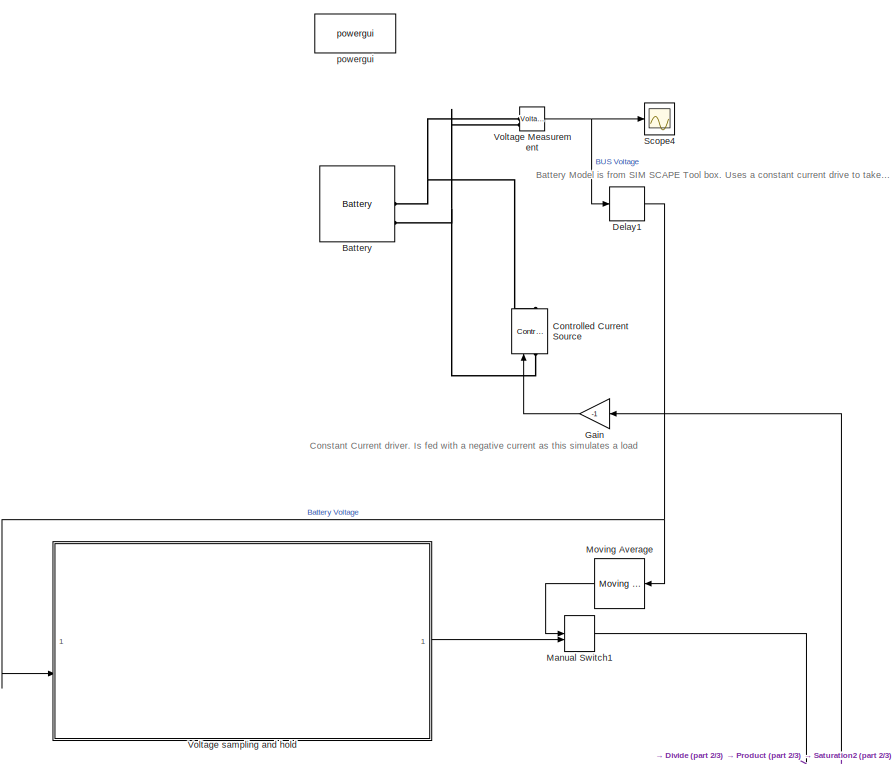
[diagram: root canvas - part 1/3, top center region]
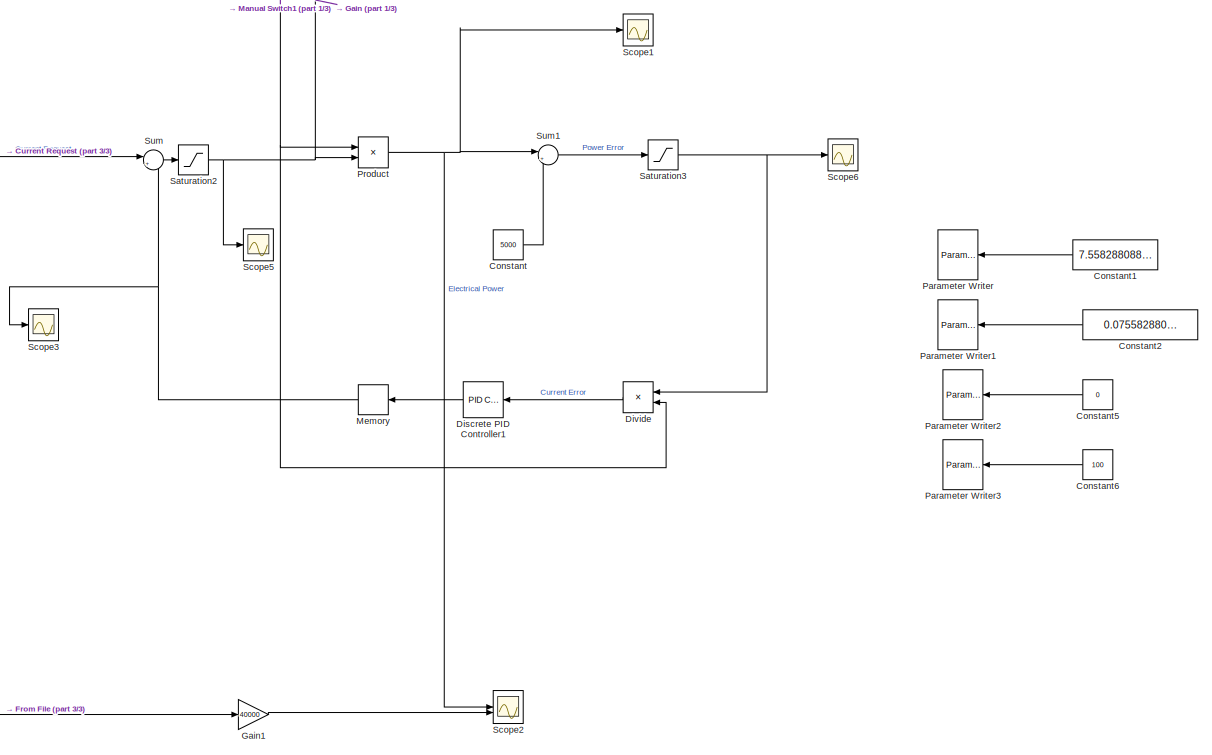
[diagram: root canvas - part 2/3, bottom right region]
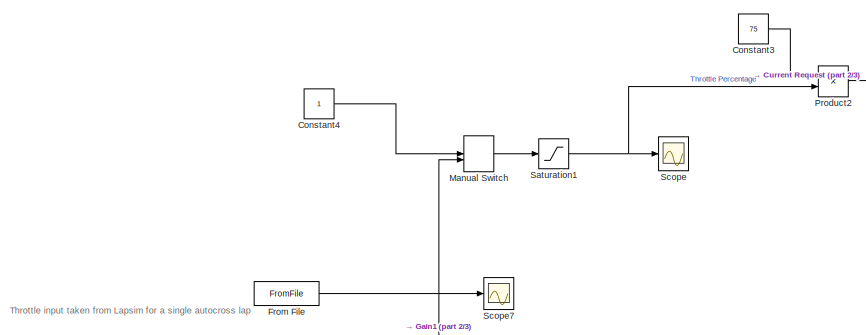
[diagram: root canvas - part 3/3, bottom left region]
MODEL slx_7d1962d27ec3
KIND model
CONFIG AbsTol = auto
CONFIG EnableMultiTasking = off
CONFIG FixedStep = auto
CONFIG MaxStep = auto
CONFIG MinStep = auto
CONFIG RelTol = 1e-3
CONFIG SampleTimeConstraint = Unconstrained
CONFIG SolverName = VariableStepAuto
CONFIG StartTime = 0.0
CONFIG StopTime = 10
BLOCK [Reference] Battery  REF=spsBatteryLib/Battery
  LibrarySourceBlock = sps_lib/Sources/Battery
  SourceBlock = spsBatteryLib/Battery
  SourceType = Battery
BLOCK [Constant] Constant
  Value = 5000
BLOCK [Constant] Constant1
  Value = 7.55828808876462e-05
BLOCK [Constant] Constant2
  Value = 0.0755828808876462
BLOCK [Constant] Constant3
  Value = 75
BLOCK [Constant] Constant4
BLOCK [Constant] Constant5
  Value = 0
BLOCK [Constant] Constant6
  Value = 100
BLOCK [Reference] Controlled Current Source  REF=spsControlledCurrentSourceLib/Controlled Current Source
  LibrarySourceBlock = sps_lib/Sources/Controlled Current Source
  SourceBlock = spsControlledCurrentSourceLib/Controlled Current Source
  SourceType = Controlled Current Source
BLOCK [Delay] Delay1
  DelayLength = 1
  InitialCondition = 600
  InputPortMap = u0
BLOCK [Reference] Discrete PID Controller1  REF=slpidlib/PID Controller
  LibrarySourceBlock = simulink/Discrete/Discrete PID Controller
  SourceBlock = slpidlib/PID Controller
  SourceType = PID 1dof
BLOCK [Product] Divide
  Inputs = */
BLOCK [FromFile] From File
  FileName = data.mat
  SampleTime = 0
BLOCK [Gain] Gain
  Gain = -1
BLOCK [Gain] Gain1
  Gain = 40000
BLOCK [ManualSwitch] Manual Switch
  CurrentSetting = 0
BLOCK [ManualSwitch] Manual Switch1
BLOCK [Memory] Memory
  InitialCondition = 14
BLOCK [Reference] Moving Average  REF=dspstat3/Moving
Average
  SourceBlock = dspstat3/Moving\nAverage
  SourceType = dsp.simulink.MovingAverage
BLOCK [ParameterWriter] Parameter Writer
  ParameterInternalName = P
  ParameterName = P
  ParameterOwnerBlock = ../Discrete PID Controller1
BLOCK [ParameterWriter] Parameter Writer1
  ParameterInternalName = I
  ParameterName = I
  ParameterOwnerBlock = ../Discrete PID Controller1
BLOCK [ParameterWriter] Parameter Writer2
  ParameterInternalName = D
  ParameterName = D
  ParameterOwnerBlock = ../Discrete PID Controller1
BLOCK [ParameterWriter] Parameter Writer3
  ParameterInternalName = N
  ParameterName = N
  ParameterOwnerBlock = ../Discrete PID Controller1
BLOCK [Product] Product
BLOCK [Product] Product2
BLOCK [Saturate] Saturation1
  LowerLimit = 0
  UpperLimit = inf
BLOCK [Saturate] Saturation2
  LowerLimit = 0
  UpperLimit = inf
BLOCK [Saturate] Saturation3
  LowerLimit = 0
  UpperLimit = inf
BLOCK [Scope] Scope
  Floating = off
  NumInputPorts = 1
  ScopeSpecificationString = Simulink.scopes.TimeScopeBlockCfg('CurrentConfiguration', extmgr.ConfigurationSet(extmgr.Configuration('Core','General UI',true),extmgr.Configuration('Core','Source UI',true),extmgr.Configuration('Sources','WiredSimulink',true),extmgr.Configuration('Visuals','Time Domain',true,'SerializedDisplays',{struct('MinYLimReal','-0.125','MaxYLimReal','1.125','YLabelReal','','MinYLimMag','0.00000','MaxYLimM...<+1484ch>
BLOCK [Scope] Scope1
  Floating = off
  NumInputPorts = 1
  ScopeSpecificationString = Simulink.scopes.TimeScopeBlockCfg('CurrentConfiguration', extmgr.ConfigurationSet(extmgr.Configuration('Core','General UI',true),extmgr.Configuration('Core','Source UI',true),extmgr.Configuration('Sources','WiredSimulink',true,'DataLoggingVariableName','ScopeData1'),extmgr.Configuration('Visuals','Time Domain',true,'SerializedDisplays',{struct('MinYLimReal','-1677.78804','MaxYLimReal','15100.09232...<+1534ch>
BLOCK [Scope] Scope2
  Floating = off
  NumInputPorts = 2
  ScopeSpecificationString = Simulink.scopes.TimeScopeBlockCfg('CurrentConfiguration', extmgr.ConfigurationSet(extmgr.Configuration('Core','General UI',true),extmgr.Configuration('Core','Source UI',true),extmgr.Configuration('Sources','WiredSimulink',true,'DataLoggingVariableName','ScopeData1'),extmgr.Configuration('Visuals','Time Domain',true,'SerializedDisplays',{struct('MinYLimReal','31236.53624','MaxYLimReal','43280.47434...<+1546ch>
BLOCK [Scope] Scope3
  Floating = off
  NumInputPorts = 1
  ScopeSpecificationString = Simulink.scopes.TimeScopeBlockCfg('CurrentConfiguration', extmgr.ConfigurationSet(extmgr.Configuration('Core','General UI',true),extmgr.Configuration('Core','Source UI',true),extmgr.Configuration('Sources','WiredSimulink',true,'DataLoggingVariableName','ScopeData2'),extmgr.Configuration('Visuals','Time Domain',true,'SerializedDisplays',{struct('MinYLimReal','7.42445','MaxYLimReal','73.17992','YLab...<+1481ch>
BLOCK [Scope] Scope4
  Floating = off
  NumInputPorts = 1
  ScopeSpecificationString = Simulink.scopes.TimeScopeBlockCfg('CurrentConfiguration', extmgr.ConfigurationSet(extmgr.Configuration('Core','General UI',true),extmgr.Configuration('Core','Source UI',true),extmgr.Configuration('Sources','WiredSimulink',true,'DataLoggingVariableName','ScopeData1'),extmgr.Configuration('Visuals','Time Domain',true,'SerializedDisplays',{struct('MinYLimReal','592.93745','MaxYLimReal','595.49837','Y...<+1506ch>
BLOCK [Scope] Scope5
  Floating = off
  NumInputPorts = 1
  ScopeSpecificationString = Simulink.scopes.TimeScopeBlockCfg('CurrentConfiguration', extmgr.ConfigurationSet(extmgr.Configuration('Core','General UI',true),extmgr.Configuration('Core','Source UI',true),extmgr.Configuration('Sources','WiredSimulink',true,'DataLoggingVariableName','ScopeData3'),extmgr.Configuration('Visuals','Time Domain',true,'SerializedDisplays',{struct('MinYLimReal','-9.375','MaxYLimReal','84.375','YLabelR...<+1495ch>
BLOCK [Scope] Scope6
  Floating = off
  NumInputPorts = 1
  ScopeSpecificationString = Simulink.scopes.TimeScopeBlockCfg('CurrentConfiguration', extmgr.ConfigurationSet(extmgr.Configuration('Core','General UI',true),extmgr.Configuration('Core','Source UI',true),extmgr.Configuration('Sources','WiredSimulink',true,'DataLoggingVariableName','ScopeData1'),extmgr.Configuration('Visuals','Time Domain',true,'SerializedDisplays',{struct('MinYLimReal','-1050.64966','MaxYLimReal','9455.84698'...<+1525ch>
BLOCK [Scope] Scope7
  Floating = off
  NumInputPorts = 1
  ScopeSpecificationString = Simulink.scopes.TimeScopeBlockCfg('CurrentConfiguration', extmgr.ConfigurationSet(extmgr.Configuration('Core','General UI',true),extmgr.Configuration('Core','Source UI',true),extmgr.Configuration('Sources','WiredSimulink',true,'DataLoggingVariableName','ScopeData1'),extmgr.Configuration('Visuals','Time Domain',true,'SerializedDisplays',{struct('MinYLimReal','-0.125','MaxYLimReal','1.125','YLabelRe...<+1445ch>
BLOCK [Sum] Sum
  Inputs = |+-
BLOCK [Sum] Sum1
  Inputs = |+-
BLOCK [Reference] Voltage Measurement  REF=spsVoltageMeasurementLib/Voltage Measurement
  LibrarySourceBlock = sps_lib/Sensors and Measurements/Voltage Measurement
  SourceBlock = spsVoltageMeasurementLib/Voltage Measurement
  SourceType = Voltage Measurement
  UserDataPersistent = on
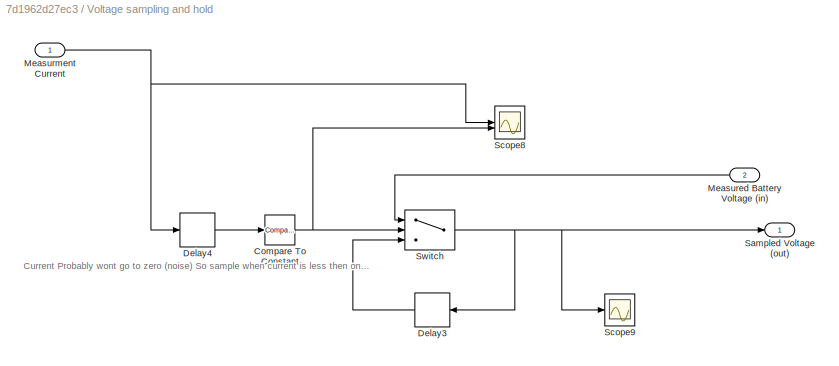
BLOCK [SubSystem] Voltage sampling  and hold
BLOCK [Reference] Voltage sampling  and hold/Compare To Constant  REF=simulink/Logic and Bit
Operations/Compare
To Constant
  SourceBlock = simulink/Logic and Bit\nOperations/Compare\nTo Constant
  SourceType = Compare To Constant
BLOCK [Delay] Voltage sampling  and hold/Delay3
  DelayLength = 1
  InitialCondition = 500
  InputPortMap = u0
BLOCK [Delay] Voltage sampling  and hold/Delay4
  DelayLength = 1
  InitialCondition = 0
  InputPortMap = u0
BLOCK [Inport] Voltage sampling  and hold/Measured Battery Voltage (in)
  Port = 2
BLOCK [Inport] Voltage sampling  and hold/Measurment Current
BLOCK [Outport] Voltage sampling  and hold/Sampled Voltage (out)
BLOCK [Scope] Voltage sampling  and hold/Scope8
  Floating = off
  NumInputPorts = 2
  ScopeSpecificationString = Simulink.scopes.TimeScopeBlockCfg('CurrentConfiguration', extmgr.ConfigurationSet(extmgr.Configuration('Core','General UI',true),extmgr.Configuration('Core','Source UI',true),extmgr.Configuration('Sources','WiredSimulink',true,'DataLoggingVariableName','ScopeData1'),extmgr.Configuration('Visuals','Time Domain',true,'SerializedDisplays',{struct('MinYLimReal','-10.24431','MaxYLimReal','77.5328','YLa...<+1489ch>
BLOCK [Scope] Voltage sampling  and hold/Scope9
  Floating = off
  NumInputPorts = 1
  ScopeSpecificationString = Simulink.scopes.TimeScopeBlockCfg('CurrentConfiguration', extmgr.ConfigurationSet(extmgr.Configuration('Core','General UI',true),extmgr.Configuration('Core','Source UI',true),extmgr.Configuration('Sources','WiredSimulink',true,'DataLoggingVariableName','ScopeData2'),extmgr.Configuration('Visuals','Time Domain',true,'SerializedDisplays',{struct('MinYLimReal','593.52019','MaxYLimReal','600.71998','Y...<+1468ch>
BLOCK [Switch] Voltage sampling  and hold/Switch
  Criteria = u2 > Threshold
  InputSameDT = off
  SaturateOnIntegerOverflow = off
BLOCK [Reference] powergui  REF=sps_lib/powergui
  LibrarySourceBlock = sps_lib/powergui
  Priority = 1
  SourceBlock = sps_lib/powergui
  SourceType = PSB option menu block
ANNOTATION (root): Battery Model is from SIM SCAPE Tool box. Uses a constant current drive to take the current request from controller and apply load to the battery. Delay block is nescarry so as to have an intial value for the model to use in calculations.
ANNOTATION (root): Throttle input taken from Lapsim for a single autocross lap
ANNOTATION (root): Constant Current driver. Is fed with a negative current as this simulates a load
ANNOTATION Voltage sampling  and hold: Current Probably wont go to zero (noise) So sample when current is less then one amp
LINE Constant1:1 -> Parameter Writer:1
LINE Constant2:1 -> Parameter Writer1:1
LINE Constant3:1 -> Product2:1
LINE Constant4:1 -> Manual Switch:1
LINE Constant5:1 -> Parameter Writer2:1
LINE Constant6:1 -> Parameter Writer3:1
LINE Constant:1 -> Sum1:2
NET Delay1:1 -> Moving Average:1, Voltage sampling  and hold:2
LINE Discrete PID Controller1:1 -> Memory:1
LINE Divide:1 -> Discrete PID Controller1:1
NET From File:1 -> Gain1:1, Manual Switch:2, Scope7:1
LINE Gain1:1 -> Scope2:2
LINE Gain:1 -> Controlled Current Source:1
NET Manual Switch1:1 -> Divide:2, Product:1
LINE Manual Switch:1 -> Saturation1:1
NET Memory:1 -> Scope3:1, Sum:2
LINE Moving Average:1 -> Manual Switch1:1
LINE Product2:1 -> Sum:1
NET Product:1 -> Scope1:1, Scope2:1, Sum1:1
NET Saturation1:1 -> Product2:2, Scope:1
NET Saturation2:1 -> Gain:1, Product:2, Scope5:1
NET Saturation3:1 -> Divide:1, Scope6:1
LINE Sum1:1 -> Saturation3:1
LINE Sum:1 -> Saturation2:1
NET Voltage Measurement:1 -> Delay1:1, Scope4:1
NET Voltage sampling  and hold/Compare To Constant:1 -> Voltage sampling  and hold/Scope8:2, Voltage sampling  and hold/Switch:2
LINE Voltage sampling  and hold/Delay3:1 -> Voltage sampling  and hold/Switch:3
LINE Voltage sampling  and hold/Delay4:1 -> Voltage sampling  and hold/Compare To Constant:1
LINE Voltage sampling  and hold/Measured Battery Voltage (in):1 -> Voltage sampling  and hold/Switch:1
NET Voltage sampling  and hold/Measurment Current:1 -> Voltage sampling  and hold/Delay4:1, Voltage sampling  and hold/Scope8:1
NET Voltage sampling  and hold/Switch:1 -> Voltage sampling  and hold/Delay3:1, Voltage sampling  and hold/Sampled Voltage (out):1, Voltage sampling  and hold/Scope9:1
LINE Voltage sampling  and hold:1 -> Manual Switch1:2
PNET net1: Battery:LConn1 -- Controlled Current Source:RConn1 -- Voltage Measurement:LConn1
PNET net2: Battery:LConn2 -- Controlled Current Source:LConn1 -- Voltage Measurement:LConn2
note: NET lines group one-source signal fan-out (src -> all destinations, sorted); 1:1 wires keep LINE; PNET lines group multi-terminal physical nets as a canonical sorted terminal list (undirected conserving connections); 2-terminal nets keep the pairwise PLINE form
